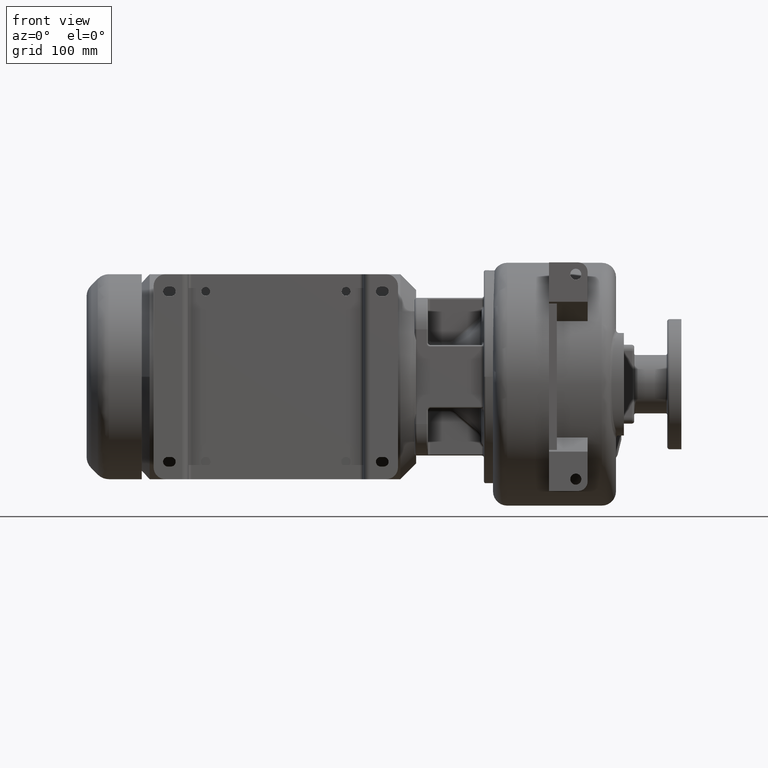
[diagram: clean part render]
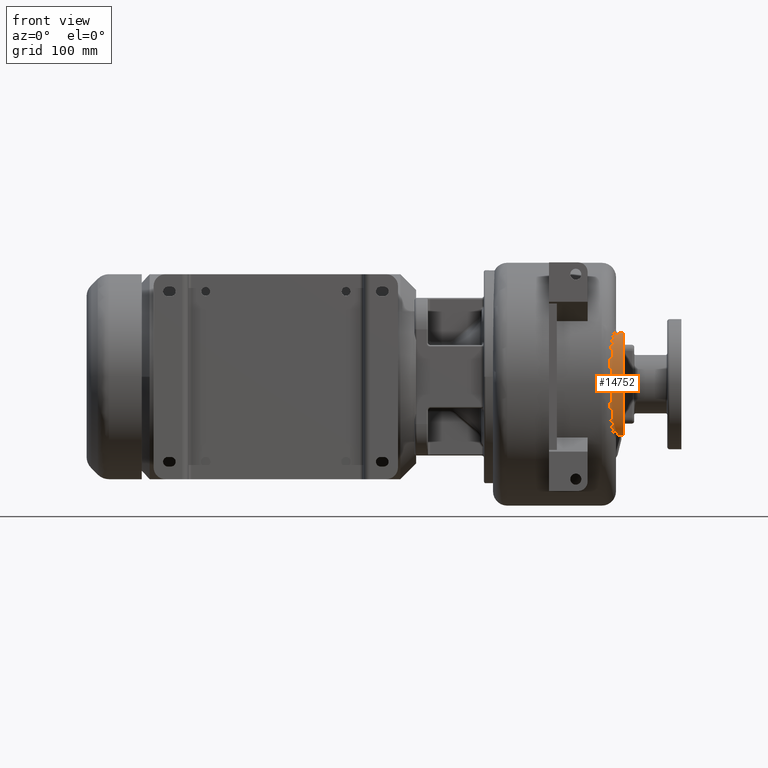
[diagram: same view with one face highlighted and labeled with its STEP entity id]
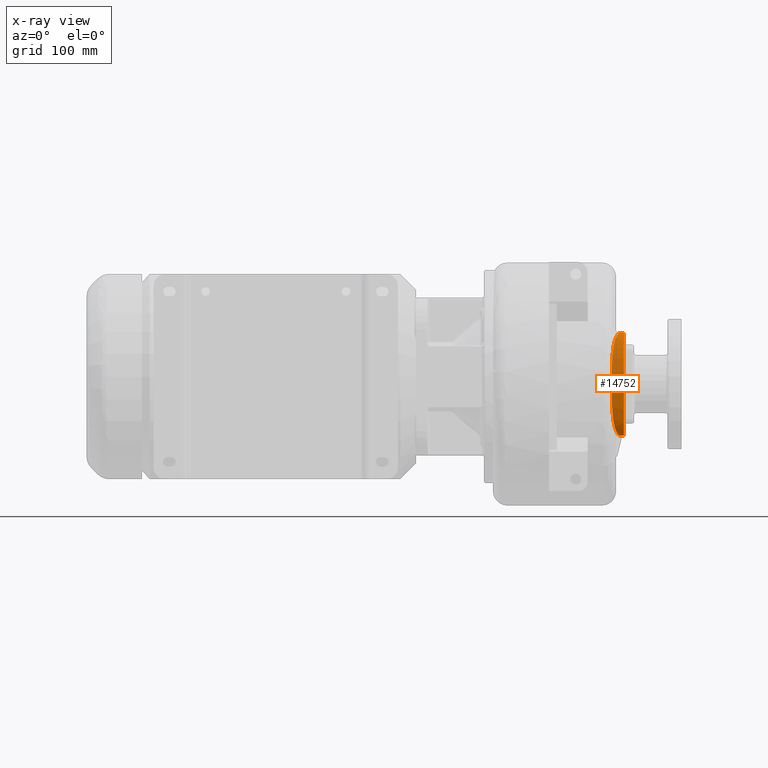
[diagram: x-ray of the same camera — body ghosted, the highlighted face saturated]
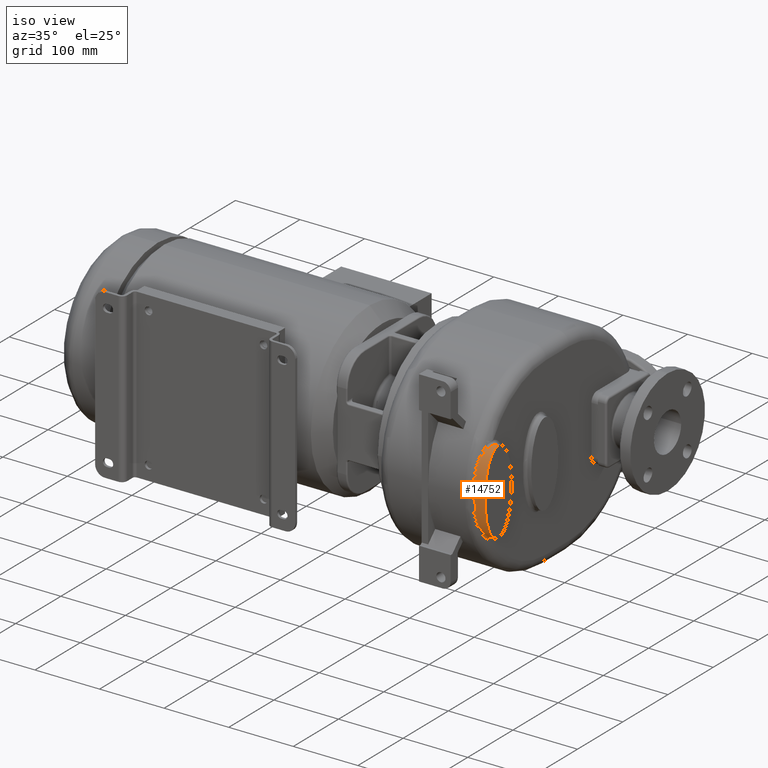
[diagram: same view with one face highlighted and labeled with its STEP entity id]
A machine part, front view. The second image highlights one B-rep face of the part: STEP entity #14752.
The next image is the same camera in x-ray: the body ghosted, the highlighted face saturated — about 0% of this face is hidden behind the body in this view.
A second angle (iso view) of the same face is appended — the face is thin or edge-on in the first view.
In plain terms, the highlighted face is a SurfaceOfExtrusion surface.
Its self-contained STEP definition (entity closure, byte-faithful):
#3537=CARTESIAN_POINT('',(6.753661334468E2,-1.199999999921E2,5.549998341802E1));
#3585=DIRECTION('',(-9.999999999897E-1,1.281506878098E-9,4.536448817370E-6));
#3586=VECTOR('',#3585,6.133866553126E0);
#3587=CARTESIAN_POINT('',(6.815E2,-1.2E2,-7.45E1));
#3588=LINE('',#3587,#3586);
#3589=CARTESIAN_POINT('',(6.753661334468E2,-1.199999999921E2,5.549998341802E1));
#3590=CARTESIAN_POINT('',(6.753503176673E2,-1.201276286323E2,5.549996662779E1));
#3591=CARTESIAN_POINT('',(6.753158417953E2,-1.203850165374E2,5.549648509429E1));
#3592=CARTESIAN_POINT('',(6.752555126804E2,-1.207772303263E2,5.548006198047E1));
#3593=CARTESIAN_POINT('',(6.751865478704E2,-1.211760541958E2,5.545198806780E1));
#3594=CARTESIAN_POINT('',(6.751089084604E2,-1.215817081829E2,5.541161724910E1));
#3595=CARTESIAN_POINT('',(6.750225837562E2,-1.219944162661E2,5.535830163297E1));
#3596=CARTESIAN_POINT('',(6.749275829805E2,-1.224143286953E2,5.529134733123E1));
#3597=CARTESIAN_POINT('',(6.748239786182E2,-1.228415376935E2,5.521003439789E1));
#3598=CARTESIAN_POINT('',(6.747117814335E2,-1.232760590457E2,5.511362628152E1));
#3599=CARTESIAN_POINT('',(6.745909502837E2,-1.237181267850E2,5.500130100335E1));
#3600=CARTESIAN_POINT('',(6.744614719817E2,-1.241680593881E2,5.487214827087E1));
#3601=CARTESIAN_POINT('',(6.743234012374E2,-1.246260558161E2,5.472522314905E1));
#3602=CARTESIAN_POINT('',(6.741768594002E2,-1.250922654009E2,5.455953368032E1));
#3603=CARTESIAN_POINT('',(6.740221384263E2,-1.255664989371E2,5.437416398298E1));
#3604=CARTESIAN_POINT('',(6.738596569966E2,-1.260484595315E2,5.416823264278E1));
#3605=CARTESIAN_POINT('',(6.736899215913E2,-1.265378202438E2,5.394087057643E1));
#3606=CARTESIAN_POINT('',(6.735131906501E2,-1.270342188550E2,5.369122829142E1));
#3607=CARTESIAN_POINT('',(6.733298125940E2,-1.275372619780E2,5.341847970430E1));
#3608=CARTESIAN_POINT('',(6.731402141375E2,-1.280465132442E2,5.312183291064E1));
#3609=CARTESIAN_POINT('',(6.729449217063E2,-1.285614728536E2,5.280055656436E1));
#3610=CARTESIAN_POINT('',(6.727444138991E2,-1.290819409093E2,5.245373981125E1));
#3611=CARTESIAN_POINT('',(6.725392873832E2,-1.296076917996E2,5.208045958088E1));
#3612=CARTESIAN_POINT('',(6.723301186506E2,-1.301384573462E2,5.167980135359E1));
#3613=CARTESIAN_POINT('',(6.721171979028E2,-1.306740043325E2,5.125079941012E1));
#3614=CARTESIAN_POINT('',(6.719009295275E2,-1.312140597917E2,5.079248807566E1));
#3615=CARTESIAN_POINT('',(6.716817892362E2,-1.317582726371E2,5.030394392941E1));
#3616=CARTESIAN_POINT('',(6.714603082448E2,-1.323063184603E2,4.978420015877E1));
#3617=CARTESIAN_POINT('',(6.712370514384E2,-1.328579283466E2,4.923220073590E1));
#3618=CARTESIAN_POINT('',(6.710127373321E2,-1.334127363695E2,4.864694799154E1));
#3619=CARTESIAN_POINT('',(6.707877547833E2,-1.339705272795E2,4.802724199652E1));
#3620=CARTESIAN_POINT('',(6.705624551475E2,-1.345311479633E2,4.737172856190E1));
#3621=CARTESIAN_POINT('',(6.703372882217E2,-1.350943467032E2,4.667907269195E1));
#3622=CARTESIAN_POINT('',(6.701128000687E2,-1.356597521396E2,4.594800468767E1));
#3623=CARTESIAN_POINT('',(6.698896351975E2,-1.362268615130E2,4.517736017789E1));
#3624=CARTESIAN_POINT('',(6.696685681527E2,-1.367950835568E2,4.436605687820E1));
#3625=CARTESIAN_POINT('',(6.694500739941E2,-1.373640986032E2,4.351255999269E1));
#3626=CARTESIAN_POINT('',(6.692345471316E2,-1.379337083847E2,4.261499675381E1));
#3627=CARTESIAN_POINT('',(6.690224817384E2,-1.385035786646E2,4.167151951340E1));
#3628=CARTESIAN_POINT('',(6.688144780702E2,-1.390731573712E2,4.068047899090E1));
#3629=CARTESIAN_POINT('',(6.686112301799E2,-1.396417218317E2,3.964039755605E1));
#3630=CARTESIAN_POINT('',(6.684134675713E2,-1.402084961497E2,3.854980275133E1));
#3631=CARTESIAN_POINT('',(6.682216019976E2,-1.407731179156E2,3.740624129342E1));
#3632=CARTESIAN_POINT('',(6.680360914343E2,-1.413351119921E2,3.620715156964E1));
#3633=CARTESIAN_POINT('',(6.678574501087E2,-1.418937976350E2,3.495007662052E1));
#3634=CARTESIAN_POINT('',(6.676862794139E2,-1.424481393584E2,3.363307174881E1));
#3635=CARTESIAN_POINT('',(6.675231842683E2,-1.429969745895E2,3.225429574866E1));
#3636=CARTESIAN_POINT('',(6.673686075568E2,-1.435393794695E2,3.081101630636E1));
#3637=CARTESIAN_POINT('',(6.672229133434E2,-1.440744059713E2,2.930006882566E1));
#3638=CARTESIAN_POINT('',(6.670864596176E2,-1.446008145757E2,2.771853094363E1));
#3639=CARTESIAN_POINT('',(6.669596354906E2,-1.451167587988E2,2.606489080420E1));
#3640=CARTESIAN_POINT('',(6.668426527290E2,-1.456203544704E2,2.433753025586E1));
#3641=CARTESIAN_POINT('',(6.667357778163E2,-1.461096048E2,2.253490859520E1));
#3642=CARTESIAN_POINT('',(6.666391142643E2,-1.465824810118E2,2.065519924548E1));
#3643=CARTESIAN_POINT('',(6.665526448625E2,-1.470364939204E2,1.869800214E1));
#3644=CARTESIAN_POINT('',(6.664761112684E2,-1.474687592653E2,1.666474310514E1));
#3645=CARTESIAN_POINT('',(6.664091036871E2,-1.478764481451E2,1.455699754239E1));
#3646=CARTESIAN_POINT('',(6.663514973170E2,-1.482565010533E2,1.237822764512E1));
#3647=CARTESIAN_POINT('',(6.663028030533E2,-1.486060948438E2,1.013159719240E1));
#3648=CARTESIAN_POINT('',(6.662623458637E2,-1.489222323757E2,7.822801002359E0));
#3649=CARTESIAN_POINT('',(6.662290296512E2,-1.492022459839E2,5.457448331661E0));
#3650=CARTESIAN_POINT('',(6.662023548300E2,-1.494435868387E2,3.042913686433E0));
#3651=CARTESIAN_POINT('',(6.661818548410E2,-1.496440835593E2,
5.868946246037E-1));
#3652=CARTESIAN_POINT('',(6.661668739484E2,-1.498019451261E2,
-1.902688274173E0));
#3653=CARTESIAN_POINT('',(6.661565693734E2,-1.499157662262E2,
-4.417660508140E0));
#3654=CARTESIAN_POINT('',(6.661502562819E2,-1.499845373452E2,
-6.949751764464E0));
#3655=CARTESIAN_POINT('',(6.661481279716E2,-1.500076443965E2,
-9.490405242927E0));
#3656=CARTESIAN_POINT('',(6.661501923405E2,-1.499848831115E2,
-1.203111233321E1));
#3657=CARTESIAN_POINT('',(6.661564795806E2,-1.499164541294E2,
-1.456329936871E1));
#3658=CARTESIAN_POINT('',(6.661668171150E2,-1.498029739127E2,
-1.707834078954E1));
#3659=CARTESIAN_POINT('',(6.661817261625E2,-1.496454518799E2,
-1.956799397606E1));
#3660=CARTESIAN_POINT('',(6.662021390553E2,-1.494452955898E2,
-2.202406307345E1));
#3661=CARTESIAN_POINT('',(6.662287334516E2,-1.492042908137E2,
-2.443869368500E1));
#3662=CARTESIAN_POINT('',(6.662620651591E2,-1.489245927232E2,
-2.680429966586E1));
#3663=CARTESIAN_POINT('',(6.663024973692E2,-1.486087269580E2,
-2.911359881084E1));
#3664=CARTESIAN_POINT('',(6.663510867012E2,-1.482593782169E2,
-3.136078522896E1));
#3665=CARTESIAN_POINT('',(6.664085777479E2,-1.478795810805E2,
-3.353995187872E1));
#3666=CARTESIAN_POINT('',(6.664754969617E2,-1.474721399900E2,
-3.564808156049E1));
#3667=CARTESIAN_POINT('',(6.665520171060E2,-1.470400726459E2,
-3.768189946941E1));
#3668=CARTESIAN_POINT('',(6.666384022836E2,-1.465862060080E2,
-3.963979132084E1));
#3669=CARTESIAN_POINT('',(6.667349652856E2,-1.461134555326E2,
-4.152017921281E1));
#3670=CARTESIAN_POINT('',(6.668417321147E2,-1.456243470239E2,
-4.332334032112E1));
#3671=CARTESIAN_POINT('',(6.669586359433E2,-1.451208846172E2,
-4.505121456579E1));
#3672=CARTESIAN_POINT('',(6.670854040616E2,-1.446050343303E2,
-4.670544152833E1));
#3673=CARTESIAN_POINT('',(6.672217902129E2,-1.440786741922E2,
-4.828764147657E1));
#3674=CARTESIAN_POINT('',(6.673674159370E2,-1.435436787449E2,
-4.979923485595E1));
#3675=CARTESIAN_POINT('',(6.675219208208E2,-1.430013078957E2,
-5.124309438897E1));
#3676=CARTESIAN_POINT('',(6.676849406557E2,-1.424525157599E2,
-5.262238163777E1));
#3677=CARTESIAN_POINT('',(6.678560597378E2,-1.418981931177E2,
-5.393991639692E1));
#3678=CARTESIAN_POINT('',(6.680346716983E2,-1.413394894581E2,
-5.519756316828E1));
#3679=CARTESIAN_POINT('',(6.682201601513E2,-1.407774575186E2,
-5.639722286443E1));
#3680=CARTESIAN_POINT('',(6.684120006632E2,-1.402127934361E2,
-5.754132142198E1));
#3681=CARTESIAN_POINT('',(6.686097223735E2,-1.396459839182E2,
-5.863240250990E1));
#3682=CARTESIAN_POINT('',(6.688129244390E2,-1.390773859351E2,
-5.967293650938E1));
#3683=CARTESIAN_POINT('',(6.690209364255E2,-1.385077373739E2,
-6.066446335946E1));
#3684=CARTESIAN_POINT('',(6.692330271063E2,-1.379377779393E2,
-6.160842586033E1));
#3685=CARTESIAN_POINT('',(6.694485804886E2,-1.373680719283E2,
-6.250645350414E1));
#3686=CARTESIAN_POINT('',(6.696670914218E2,-1.367989614987E2,
-6.336038331178E1));
#3687=CARTESIAN_POINT('',(6.698881325636E2,-1.362306612827E2,
-6.417206849373E1));
#3688=CARTESIAN_POINT('',(6.701112949815E2,-1.356634686237E2,
-6.494307969102E1));
#3689=CARTESIAN_POINT('',(6.703358342677E2,-1.350979576956E2,
-6.567452070243E1));
#3690=CARTESIAN_POINT('',(6.705610673289E2,-1.345346423416E2,
-6.636753977528E1));
#3691=CARTESIAN_POINT('',(6.707864300030E2,-1.339738994644E2,
-6.702340008097E1));
#3692=CARTESIAN_POINT('',(6.710114593376E2,-1.334159856126E2,
-6.764343183419E1));
#3693=CARTESIAN_POINT('',(6.712357684692E2,-1.328610621761E2,
-6.822898209454E1));
#3694=CARTESIAN_POINT('',(6.714590307880E2,-1.323093392515E2,
-6.878125854999E1));
#3695=CARTESIAN_POINT('',(6.716805856393E2,-1.317611724383E2,
-6.930126947448E1));
#3696=CARTESIAN_POINT('',(6.718998140878E2,-1.312168449827E2,
-6.979005804557E1));
#3697=CARTESIAN_POINT('',(6.721161693905E2,-1.306766795354E2,
-7.024859455103E1));
#3698=CARTESIAN_POINT('',(6.723291544866E2,-1.301410264572E2,
-7.067780433146E1));
#3699=CARTESIAN_POINT('',(6.725383518144E2,-1.296101567227E2,
-7.107865572437E1));
#3700=CARTESIAN_POINT('',(6.727434440223E2,-1.290843096119E2,
-7.145211097018E1));
#3701=CARTESIAN_POINT('',(6.729439880015E2,-1.285637715715E2,
-7.179907426171E1));
#3702=CARTESIAN_POINT('',(6.731393296161E2,-1.280487962214E2,
-7.212045539066E1));
#3703=CARTESIAN_POINT('',(6.733289643205E2,-1.275396057802E2,
-7.241716045448E1));
#3704=CARTESIAN_POINT('',(6.735123643411E2,-1.270366457338E2,
-7.268995893354E1));
#3705=CARTESIAN_POINT('',(6.736891041765E2,-1.265403041554E2,
-7.293966856091E1));
#3706=CARTESIAN_POINT('',(6.738588348108E2,-1.260509084594E2,
-7.316714145025E1));
#3707=CARTESIAN_POINT('',(6.740213028260E2,-1.255688211127E2,
-7.337321573720E1));
#3708=CARTESIAN_POINT('',(6.741760972958E2,-1.250944187558E2,
-7.355873205795E1));
#3709=CARTESIAN_POINT('',(6.743227364889E2,-1.246280467222E2,
-7.372455148459E1));
#3710=CARTESIAN_POINT('',(6.744609067905E2,-1.241699377031E2,
-7.387157823304E1));
#3711=CARTESIAN_POINT('',(6.745904733774E2,-1.237199398713E2,
-7.400081073679E1));
#3712=CARTESIAN_POINT('',(6.747113688123E2,-1.232778559290E2,
-7.411319840301E1));
#3713=CARTESIAN_POINT('',(6.748236008945E2,-1.228433709592E2,
-7.420965569170E1));
#3714=CARTESIAN_POINT('',(6.749271840585E2,-1.224162367625E2,
-7.429101283129E1));
#3715=CARTESIAN_POINT('',(6.750221728199E2,-1.219963440115E2,
-7.435802344930E1));
#3716=CARTESIAN_POINT('',(6.751085167980E2,-1.215835744140E2,
-7.441140466064E1));
#3717=CARTESIAN_POINT('',(6.751862053020E2,-1.211777392566E2,
-7.445184769778E1));
#3718=CARTESIAN_POINT('',(6.752552548717E2,-1.207785768831E2,
-7.447998859787E1));
#3719=CARTESIAN_POINT('',(6.753156844023E2,-1.203858303567E2,
-7.449647522640E1));
#3720=CARTESIAN_POINT('',(6.753502725231E2,-1.201279265232E2,
-7.449995220439E1));
#3721=CARTESIAN_POINT('',(6.753661334469E2,-1.199999999921E2,
-7.449997217403E1));
#3723=DIRECTION('',(-9.999999999963E-1,1.281303000939E-9,-2.703349258996E-6));
#3724=VECTOR('',#3723,6.133866553182E0);
#3725=CARTESIAN_POINT('',(6.815E2,-1.2E2,5.55E1));
#3726=LINE('',#3725,#3724);
#3732=CARTESIAN_POINT('',(6.815E2,-1.2E2,-7.45E1));
#3778=CARTESIAN_POINT('',(6.815E2,-1.2E2,5.55E1));
#3780=CARTESIAN_POINT('',(6.815E2,-1.2E2,5.55E1));
#3781=CARTESIAN_POINT('',(6.815E2,-1.208838834765E2,5.55E1));
#3782=CARTESIAN_POINT('',(6.815E2,-1.226841901264E2,5.533054573986E1));
#3783=CARTESIAN_POINT('',(6.815E2,-1.254533081643E2,5.451550426950E1));
#3784=CARTESIAN_POINT('',(6.815E2,-1.282559266504E2,5.309653086462E1));
#3785=CARTESIAN_POINT('',(6.815E2,-1.310514639061E2,5.104396596498E1));
#3786=CARTESIAN_POINT('',(6.815E2,-1.337952654463E2,4.834504268982E1));
#3787=CARTESIAN_POINT('',(6.815E2,-1.364405010588E2,4.500662593933E1));
#3788=CARTESIAN_POINT('',(6.815E2,-1.389404859279E2,4.105670292812E1));
#3789=CARTESIAN_POINT('',(6.815E2,-1.412512179815E2,3.654430550236E1));
#3790=CARTESIAN_POINT('',(6.815E2,-1.433338627596E2,3.153771972519E1));
#3791=CARTESIAN_POINT('',(6.815E2,-1.451569047436E2,2.612108489258E1));
#3792=CARTESIAN_POINT('',(6.815E2,-1.466977102852E2,2.038974452468E1));
#3793=CARTESIAN_POINT('',(6.815E2,-1.479433753448E2,1.444482830054E1));
#3794=CARTESIAN_POINT('',(6.815E2,-1.487327979966E2,9.397370552012E0));
#3795=CARTESIAN_POINT('',(6.815E2,-1.492181947740E2,5.351619241119E0));
#3796=CARTESIAN_POINT('',(6.815E2,-1.495107599007E2,2.324603649750E0));
#3797=CARTESIAN_POINT('',(6.815E2,-1.497337319380E2,-6.844433993807E-1));
#3798=CARTESIAN_POINT('',(6.815E2,-1.498634729793E2,-3.168763282565E0));
#3799=CARTESIAN_POINT('',(6.815E2,-1.499349440248E2,-5.137722021454E0));
#3800=CARTESIAN_POINT('',(6.815E2,-1.499727460862E2,-6.604195585030E0));
#3801=CARTESIAN_POINT('',(6.815E2,-1.499913883789E2,-7.816699614546E0));
#3802=CARTESIAN_POINT('',(6.815E2,-1.499987792732E2,-8.780892543298E0));
#3803=CARTESIAN_POINT('',(6.815E2,-1.500006103634E2,-9.5E0));
#3804=CARTESIAN_POINT('',(6.815E2,-1.499987792732E2,-1.021910745670E1));
#3805=CARTESIAN_POINT('',(6.815E2,-1.499913883789E2,-1.118330038545E1));
#3806=CARTESIAN_POINT('',(6.815E2,-1.499727460862E2,-1.239580441497E1));
#3807=CARTESIAN_POINT('',(6.815E2,-1.499349440248E2,-1.386227797855E1));
#3808=CARTESIAN_POINT('',(6.815E2,-1.498634729793E2,-1.583123671743E1));
#3809=CARTESIAN_POINT('',(6.815E2,-1.497337319380E2,-1.831555660062E1));
#3810=CARTESIAN_POINT('',(6.815E2,-1.495107599007E2,-2.132460364975E1));
#3811=CARTESIAN_POINT('',(6.815E2,-1.492181947740E2,-2.435161924112E1));
#3812=CARTESIAN_POINT('',(6.815E2,-1.487327979966E2,-2.839737055201E1));
#3813=CARTESIAN_POINT('',(6.815E2,-1.479433753448E2,-3.344482830054E1));
#3814=CARTESIAN_POINT('',(6.815E2,-1.466977102852E2,-3.938974452468E1));
#3815=CARTESIAN_POINT('',(6.815E2,-1.451569047436E2,-4.512108489258E1));
#3816=CARTESIAN_POINT('',(6.815E2,-1.433338627596E2,-5.053771972519E1));
#3817=CARTESIAN_POINT('',(6.815E2,-1.412512179815E2,-5.554430550236E1));
#3818=CARTESIAN_POINT('',(6.815E2,-1.389404859279E2,-6.005670292812E1));
#3819=CARTESIAN_POINT('',(6.815E2,-1.364405010588E2,-6.400662593933E1));
#3820=CARTESIAN_POINT('',(6.815E2,-1.337952654463E2,-6.734504268982E1));
#3821=CARTESIAN_POINT('',(6.815E2,-1.310514639061E2,-7.004396596498E1));
#3822=CARTESIAN_POINT('',(6.815E2,-1.282559266504E2,-7.209653086462E1));
#3823=CARTESIAN_POINT('',(6.815E2,-1.254533081643E2,-7.351550426950E1));
#3824=CARTESIAN_POINT('',(6.815E2,-1.226841901264E2,-7.433054573986E1));
#3825=CARTESIAN_POINT('',(6.815E2,-1.208838834765E2,-7.45E1));
#3826=CARTESIAN_POINT('',(6.815E2,-1.2E2,-7.45E1));
#11770=VERTEX_POINT('',#3732);
#11771=VERTEX_POINT('',#3778);
#11779=VERTEX_POINT('',#3537);
#11781=VERTEX_POINT('',#3721);
#14736=CARTESIAN_POINT('',(6.815E2,-1.2E2,-9.5E0));
#14737=DIRECTION('',(1.E0,0.E0,0.E0));
#14738=DIRECTION('',(0.E0,0.E0,-1.E0));
#14739=AXIS2_PLACEMENT_3D('',#14736,#14737,#14738);
#14741=DIRECTION('',(1.E0,0.E0,0.E0));
#14742=VECTOR('',#14741,1.E0);
#14743=SURFACE_OF_LINEAR_EXTRUSION('',#14740,#14742);
#14745=ORIENTED_EDGE('',*,*,#14744,.F.);
#14746=ORIENTED_EDGE('',*,*,#14731,.F.);
#14748=ORIENTED_EDGE('',*,*,#14747,.T.);
#14749=ORIENTED_EDGE('',*,*,#14727,.T.);
#14750=EDGE_LOOP('',(#14745,#14746,#14748,#14749));
#14751=FACE_OUTER_BOUND('',#14750,.F.);
#14752=ADVANCED_FACE('',(#14751),#14743,.T.);
#3722=B_SPLINE_CURVE_WITH_KNOTS('',3,(#3589,#3590,#3591,#3592,#3593,#3594,#3595,
#3596,#3597,#3598,#3599,#3600,#3601,#3602,#3603,#3604,#3605,#3606,#3607,#3608,
#3609,#3610,#3611,#3612,#3613,#3614,#3615,#3616,#3617,#3618,#3619,#3620,#3621,
#3622,#3623,#3624,#3625,#3626,#3627,#3628,#3629,#3630,#3631,#3632,#3633,#3634,
#3635,#3636,#3637,#3638,#3639,#3640,#3641,#3642,#3643,#3644,#3645,#3646,#3647,
#3648,#3649,#3650,#3651,#3652,#3653,#3654,#3655,#3656,#3657,#3658,#3659,#3660,
#3661,#3662,#3663,#3664,#3665,#3666,#3667,#3668,#3669,#3670,#3671,#3672,#3673,
#3674,#3675,#3676,#3677,#3678,#3679,#3680,#3681,#3682,#3683,#3684,#3685,#3686,
#3687,#3688,#3689,#3690,#3691,#3692,#3693,#3694,#3695,#3696,#3697,#3698,#3699,
#3700,#3701,#3702,#3703,#3704,#3705,#3706,#3707,#3708,#3709,#3710,#3711,#3712,
#3713,#3714,#3715,#3716,#3717,#3718,#3719,#3720,#3721),.UNSPECIFIED.,.F.,.F.,(4,
1,1,1,1,1,1,1,1,1,1,1,1,1,1,1,1,1,1,1,1,1,1,1,1,1,1,1,1,1,1,1,1,1,1,1,1,1,1,1,1,
1,1,1,1,1,1,1,1,1,1,1,1,1,1,1,1,1,1,1,1,1,1,1,1,1,1,1,1,1,1,1,1,1,1,1,1,1,1,1,1,
1,1,1,1,1,1,1,1,1,1,1,1,1,1,1,1,1,1,1,1,1,1,1,1,1,1,1,1,1,1,1,1,1,1,1,1,1,1,1,1,
1,1,1,1,1,1,1,1,1,4),(0.E0,7.692307692308E-3,1.538461538462E-2,
2.307692307692E-2,3.076923076923E-2,3.846153846154E-2,4.615384615385E-2,
5.384615384615E-2,6.153846153846E-2,6.923076923077E-2,7.692307692308E-2,
8.461538461538E-2,9.230769230769E-2,1.E-1,1.076923076923E-1,1.153846153846E-1,
1.230769230769E-1,1.307692307692E-1,1.384615384615E-1,1.461538461538E-1,
1.538461538462E-1,1.615384615385E-1,1.692307692308E-1,1.769230769231E-1,
1.846153846154E-1,1.923076923077E-1,2.E-1,2.076923076923E-1,2.153846153846E-1,
2.230769230769E-1,2.307692307692E-1,2.384615384615E-1,2.461538461538E-1,
2.538461538462E-1,2.615384615385E-1,2.692307692308E-1,2.769230769231E-1,
2.846153846154E-1,2.923076923077E-1,3.E-1,3.076923076923E-1,3.153846153846E-1,
3.230769230769E-1,3.307692307692E-1,3.384615384615E-1,3.461538461538E-1,
3.538461538462E-1,3.615384615385E-1,3.692307692308E-1,3.769230769231E-1,
3.846153846154E-1,3.923076923077E-1,4.E-1,4.076923076923E-1,4.153846153846E-1,
4.230769230769E-1,4.307692307692E-1,4.384615384615E-1,4.461538461538E-1,
4.538461538462E-1,4.615384615385E-1,4.692307692308E-1,4.769230769231E-1,
4.846153846154E-1,4.923076923077E-1,5.E-1,5.076923076923E-1,5.153846153846E-1,
5.230769230769E-1,5.307692307692E-1,5.384615384615E-1,5.461538461538E-1,
5.538461538462E-1,5.615384615385E-1,5.692307692308E-1,5.769230769231E-1,
5.846153846154E-1,5.923076923077E-1,6.E-1,6.076923076923E-1,6.153846153846E-1,
6.230769230769E-1,6.307692307692E-1,6.384615384615E-1,6.461538461538E-1,
6.538461538462E-1,6.615384615385E-1,6.692307692308E-1,6.769230769231E-1,
6.846153846154E-1,6.923076923077E-1,7.E-1,7.076923076923E-1,7.153846153846E-1,
7.230769230769E-1,7.307692307692E-1,7.384615384615E-1,7.461538461538E-1,
7.538461538462E-1,7.615384615385E-1,7.692307692308E-1,7.769230769231E-1,
7.846153846154E-1,7.923076923077E-1,8.E-1,8.076923076923E-1,8.153846153846E-1,
8.230769230769E-1,8.307692307692E-1,8.384615384615E-1,8.461538461538E-1,
8.538461538462E-1,8.615384615385E-1,8.692307692308E-1,8.769230769231E-1,
8.846153846154E-1,8.923076923077E-1,9.E-1,9.076923076923E-1,9.153846153846E-1,
9.230769230769E-1,9.307692307692E-1,9.384615384615E-1,9.461538461538E-1,
9.538461538462E-1,9.615384615385E-1,9.692307692308E-1,9.769230769231E-1,
9.846153846154E-1,9.923076923077E-1,1.E0),.UNSPECIFIED.);
#3827=B_SPLINE_CURVE_WITH_KNOTS('',3,(#3780,#3781,#3782,#3783,#3784,#3785,#3786,
#3787,#3788,#3789,#3790,#3791,#3792,#3793,#3794,#3795,#3796,#3797,#3798,#3799,
#3800,#3801,#3802,#3803,#3804,#3805,#3806,#3807,#3808,#3809,#3810,#3811,#3812,
#3813,#3814,#3815,#3816,#3817,#3818,#3819,#3820,#3821,#3822,#3823,#3824,#3825,
#3826),.UNSPECIFIED.,.F.,.F.,(4,1,1,1,1,1,1,1,1,1,1,1,1,1,1,1,1,1,1,1,1,1,1,1,1,
1,1,1,1,1,1,1,1,1,1,1,1,1,1,1,1,1,1,1,4),(0.E0,3.125E-2,6.25E-2,9.375E-2,
1.25E-1,1.5625E-1,1.875E-1,2.1875E-1,2.5E-1,2.8125E-1,3.125E-1,3.4375E-1,
3.75E-1,4.0625E-1,4.21875E-1,4.375E-1,4.53125E-1,4.6875E-1,4.765625E-1,
4.84375E-1,4.921875E-1,4.9609375E-1,5.E-1,5.0390625E-1,5.078125E-1,5.15625E-1,
5.234375E-1,5.3125E-1,5.46875E-1,5.625E-1,5.78125E-1,5.9375E-1,6.25E-1,
6.5625E-1,6.875E-1,7.1875E-1,7.5E-1,7.8125E-1,8.125E-1,8.4375E-1,8.75E-1,
9.0625E-1,9.375E-1,9.6875E-1,1.E0),.UNSPECIFIED.);
#14727=EDGE_CURVE('',#11770,#11781,#3588,.T.);
#14731=EDGE_CURVE('',#11771,#11779,#3726,.T.);
#14740=ELLIPSE('',#14739,6.5E1,3.E1);
#14744=EDGE_CURVE('',#11779,#11781,#3722,.T.);
#14747=EDGE_CURVE('',#11771,#11770,#3827,.T.);